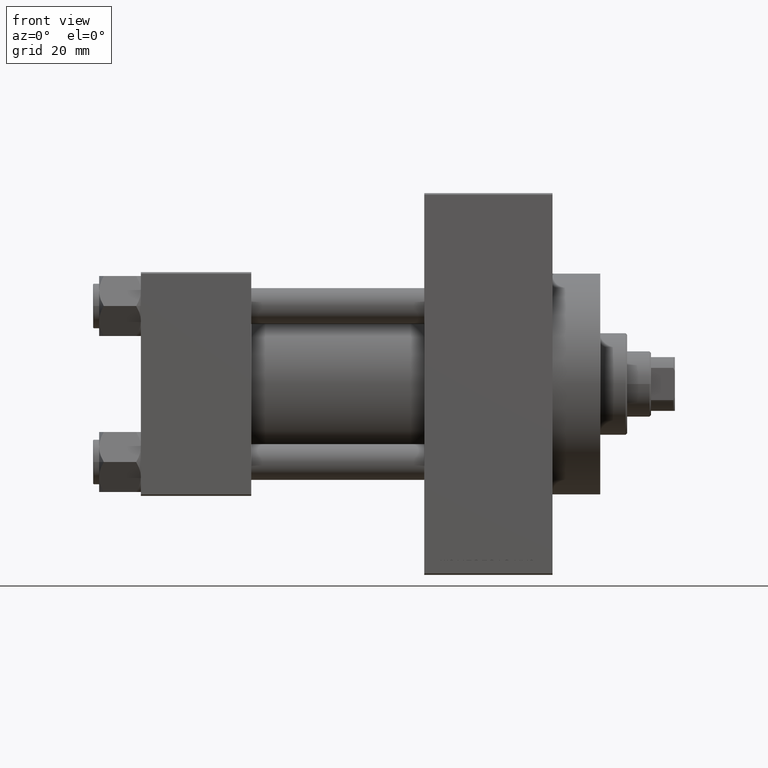
[diagram: clean part render]
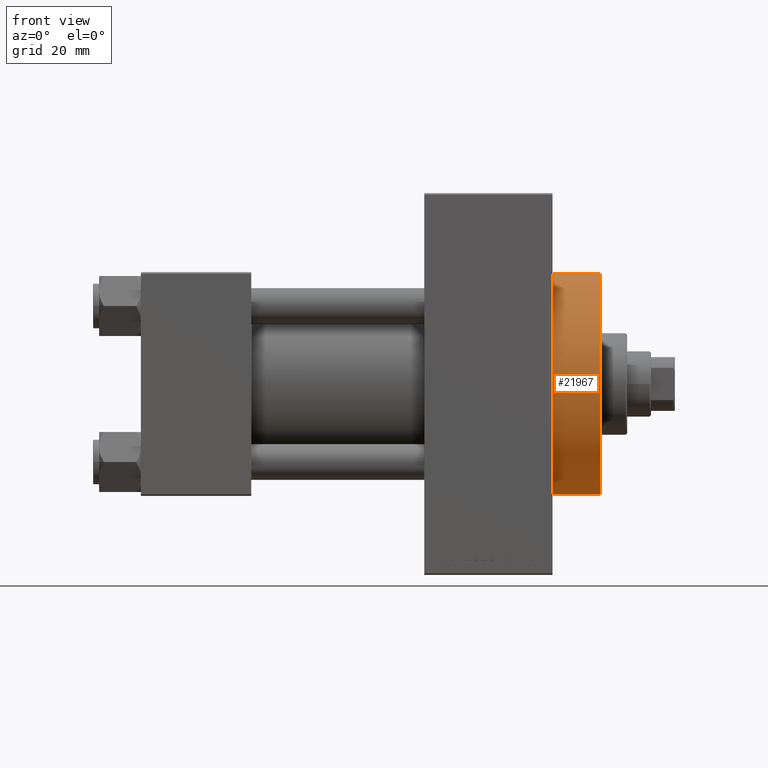
[diagram: same view with one face highlighted and labeled with its STEP entity id]
A machine part, front view. The second image highlights one B-rep face of the part: STEP entity #21967.
In plain terms, the highlighted cylindrical surface (partial cylindrical patch) has radius 37 mm, axis along (-1, -0, -0).
Its self-contained STEP definition (entity closure, byte-faithful):
#937 = ORIENTED_EDGE ( 'NONE', *, *, #15229, .T. ) ;
#1018 = CYLINDRICAL_SURFACE ( 'NONE', #23886, 37.00000000000000000 ) ;
#2243 = ORIENTED_EDGE ( 'NONE', *, *, #44829, .F. ) ;
#3150 = VECTOR ( 'NONE', #41128, 1000.000000000000000 ) ;
#3426 = CARTESIAN_POINT ( 'NONE',  ( 138.0000000000000000, 4.531193156845206793E-15, -37.00000000000000000 ) ) ;
#4840 = DIRECTION ( 'NONE',  ( -1.000000000000000000, -0.000000000000000000, -0.000000000000000000 ) ) ;
#5283 = CARTESIAN_POINT ( 'NONE',  ( 154.0000000000000284, 0.000000000000000000, 37.00000000000000000 ) ) ;
#5524 = CIRCLE ( 'NONE', #15485, 37.00000000000000000 ) ;
#9597 = EDGE_CURVE ( 'NONE', #32438, #41578, #45104, .T. ) ;
#10261 = CARTESIAN_POINT ( 'NONE',  ( 154.0000000000000284, 0.000000000000000000, 37.00000000000000000 ) ) ;
#10934 = CARTESIAN_POINT ( 'NONE',  ( 138.0000000000000000, 0.000000000000000000, 0.000000000000000000 ) ) ;
#11450 = CARTESIAN_POINT ( 'NONE',  ( 154.0000000000000284, 4.531193156845206793E-15, -37.00000000000000000 ) ) ;
#11621 = CARTESIAN_POINT ( 'NONE',  ( 154.0000000000000284, 4.531193156845206793E-15, -37.00000000000000000 ) ) ;
#15229 = EDGE_CURVE ( 'NONE', #41578, #42642, #32905, .T. ) ;
#15485 = AXIS2_PLACEMENT_3D ( 'NONE', #16838, #42509, #31475 ) ;
#15874 = CARTESIAN_POINT ( 'NONE',  ( 154.0000000000000284, 0.000000000000000000, 0.000000000000000000 ) ) ;
#16838 = CARTESIAN_POINT ( 'NONE',  ( 154.0000000000000284, 0.000000000000000000, 0.000000000000000000 ) ) ;
#18384 = DIRECTION ( 'NONE',  ( 1.000000000000000000, 0.000000000000000000, 0.000000000000000000 ) ) ;
#18930 = EDGE_LOOP ( 'NONE', ( #25621, #2243, #31511, #937 ) ) ;
#19738 = EDGE_CURVE ( 'NONE', #39090, #42642, #44486, .T. ) ;
#19930 = DIRECTION ( 'NONE',  ( -1.000000000000000000, -0.000000000000000000, -0.000000000000000000 ) ) ;
#21227 = CARTESIAN_POINT ( 'NONE',  ( 138.0000000000000000, 0.000000000000000000, 37.00000000000000000 ) ) ;
#21304 = VECTOR ( 'NONE', #19930, 1000.000000000000000 ) ;
#21967 = ADVANCED_FACE ( 'NONE', ( #41299 ), #1018, .T. ) ;
#23886 = AXIS2_PLACEMENT_3D ( 'NONE', #15874, #4840, #26896 ) ;
#25621 = ORIENTED_EDGE ( 'NONE', *, *, #19738, .F. ) ;
#26896 = DIRECTION ( 'NONE',  ( 0.000000000000000000, 0.000000000000000000, 1.000000000000000000 ) ) ;
#31475 = DIRECTION ( 'NONE',  ( 0.000000000000000000, 0.000000000000000000, -1.000000000000000000 ) ) ;
#31511 = ORIENTED_EDGE ( 'NONE', *, *, #9597, .T. ) ;
#32438 = VERTEX_POINT ( 'NONE', #10261 ) ;
#32777 = DIRECTION ( 'NONE',  ( 0.000000000000000000, 0.000000000000000000, -1.000000000000000000 ) ) ;
#32905 = CIRCLE ( 'NONE', #42817, 37.00000000000000000 ) ;
#39090 = VERTEX_POINT ( 'NONE', #11450 ) ;
#41128 = DIRECTION ( 'NONE',  ( -1.000000000000000000, -0.000000000000000000, -0.000000000000000000 ) ) ;
#41299 = FACE_OUTER_BOUND ( 'NONE', #18930, .T. ) ;
#41578 = VERTEX_POINT ( 'NONE', #21227 ) ;
#42509 = DIRECTION ( 'NONE',  ( 1.000000000000000000, 0.000000000000000000, 0.000000000000000000 ) ) ;
#42642 = VERTEX_POINT ( 'NONE', #3426 ) ;
#42817 = AXIS2_PLACEMENT_3D ( 'NONE', #10934, #18384, #32777 ) ;
#44486 = LINE ( 'NONE', #11621, #3150 ) ;
#44829 = EDGE_CURVE ( 'NONE', #32438, #39090, #5524, .T. ) ;
#45104 = LINE ( 'NONE', #5283, #21304 ) ;